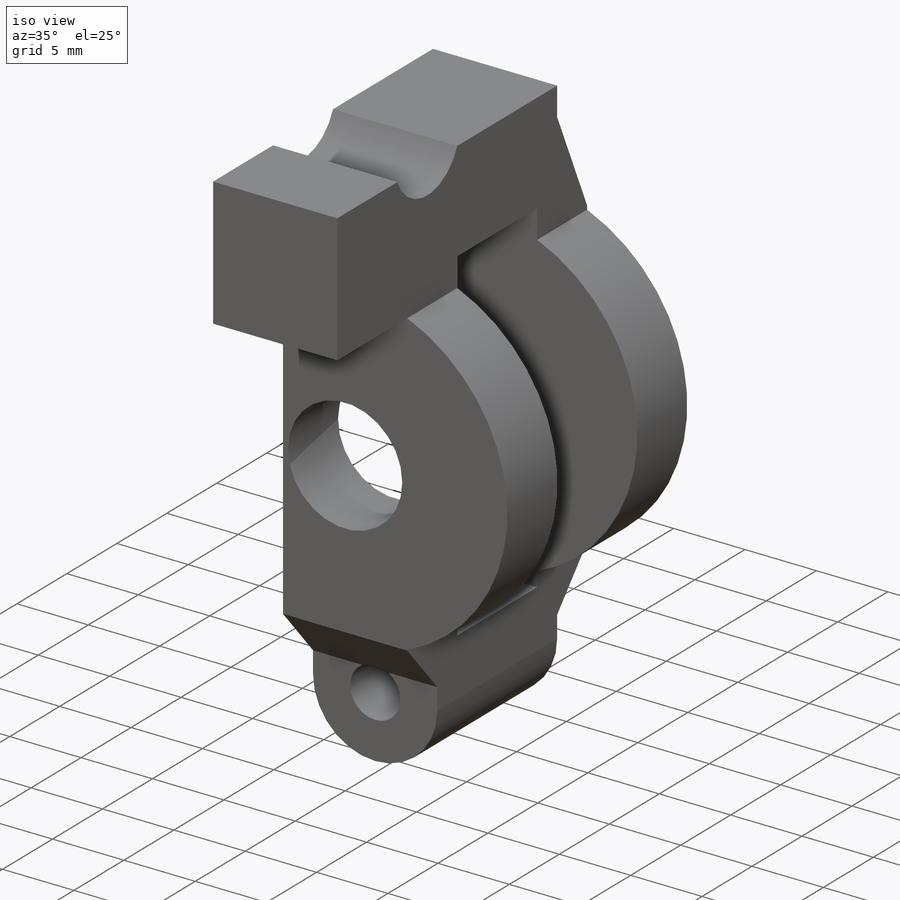
[diagram: iso view]
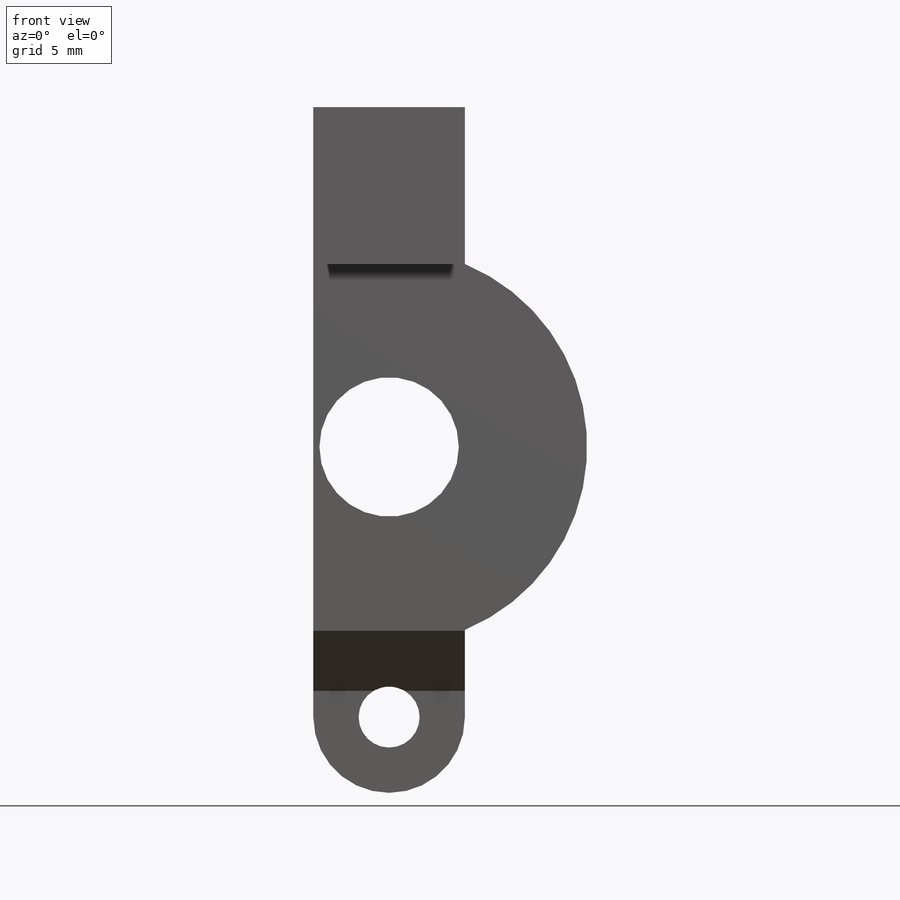
[diagram: front view]
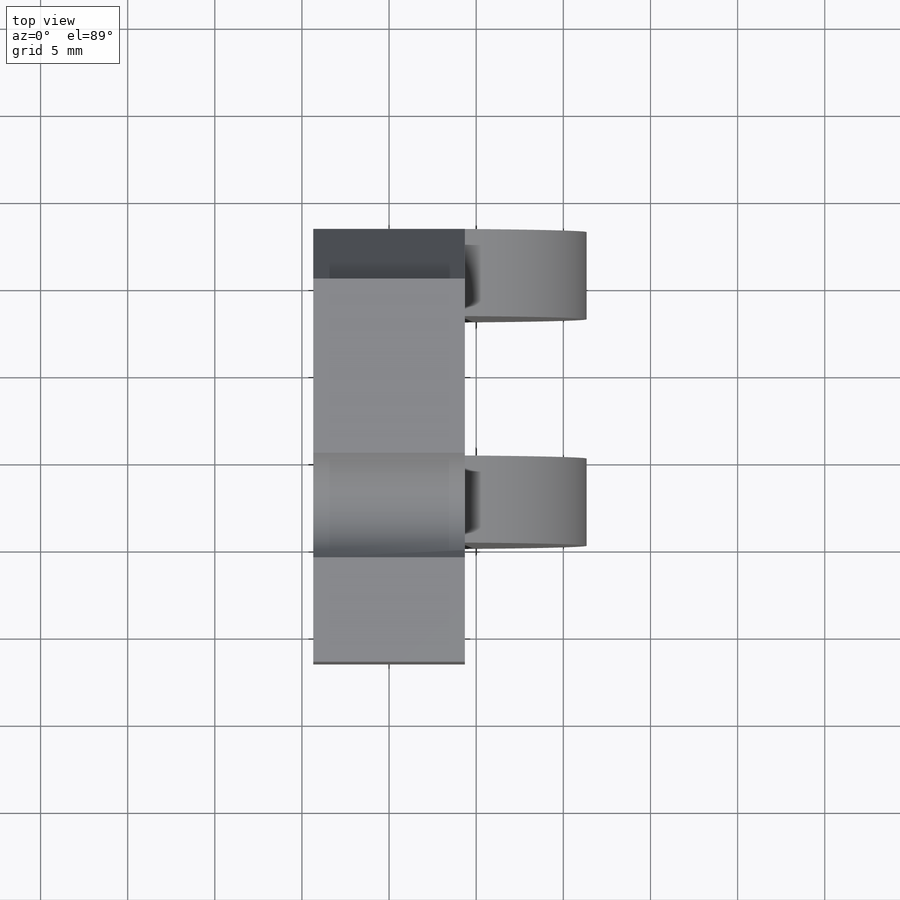
[diagram: top view]
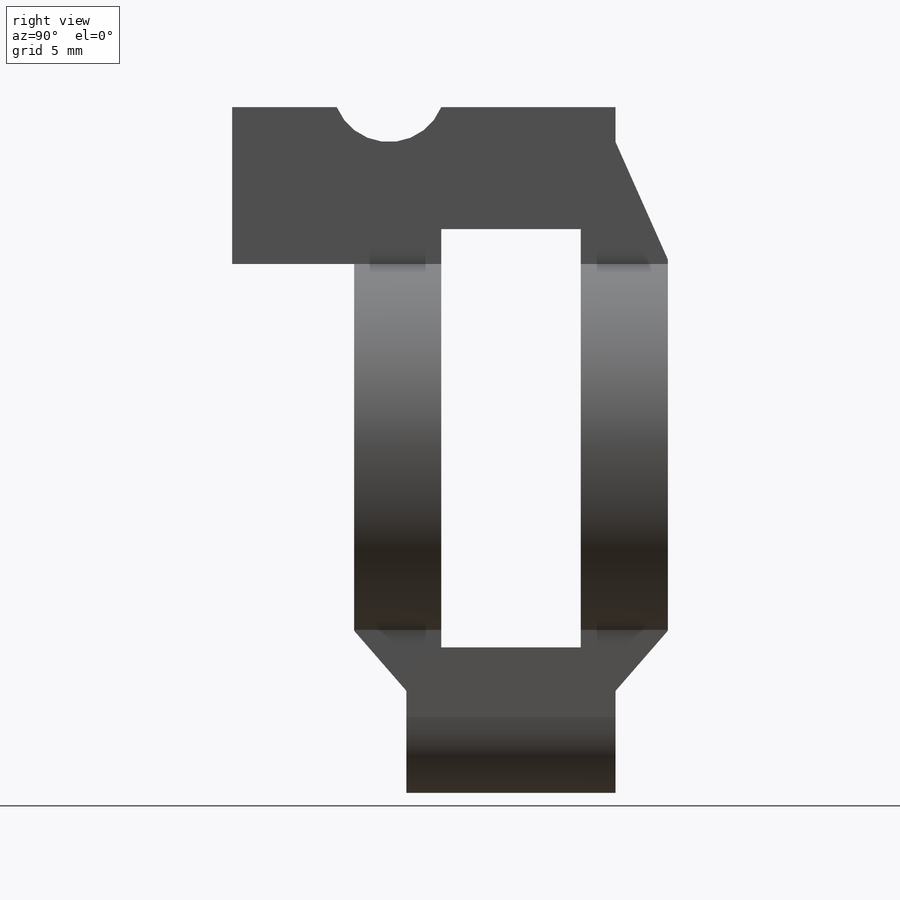
[diagram: right view]
SOLIDWORKS PART (.sldprt)
format: sldprt  version: not decoded by parser v0  size: 260,096 bytes
history: native  units: mm
features: sketch x5, extrude x3, cut_extrude x2, chamfer x2, material x1 (+11 scaffold rows collapsed)
feature tree (24):
  scaffold x11  (default folders/planes/origin — collapsed)
  material  "ABS PC"
  sketch  "Sketch1"  dims[c1.D1=3.5mm c1.D2=4.0mm c1.D3=4.0mm c1.D4=8.0mm c1.D5=8.0mm c1.D6=8.0mm c2.D2=2.6mm c2.D3=35.0mm c2.D5=15.5mm c2.D6=5.0mm]
  extrude  "Boss-Extrude1"  Depth=12mm
  sketch  "Sketch3"  dims[D1=~11.622585mm]
  extrude  "Boss-Extrude2"  Depth=15mm
  sketch  "Sketch2"  dims[c1.D1=~4.472805mm c1.D2=~18.786073mm c2.D1=24.0mm c2.D2=8.0mm c2.D3=2.0mm c2.D4=4.0mm]
  cut_extrude  "Cut-Extrude1"  [1 undecoded]
  chamfer  "Chamfer1"  Distance=7mm Angle=24deg
  chamfer  "Chamfer2"  Distance=3.5mm Angle=41deg
  sketch  "Sketch4"  dims[D1=16.0mm D2=~8.684384mm]
  extrude  "Boss-Extrude3"  Depth=10mm
  sketch  "Sketch5"  dims[D1=~6.193259mm D2=6.0mm D3=6.0mm]
  cut_extrude  "Cut-Extrude2"  [1 undecoded]
decode coverage: 10 of 12 modeling features carry decoded parameters
note: ~ marks probable driven/reference dimensions
note: 2 parameter values undecoded
note: suppression state not decoded; provenance and decode notes live in map.json
